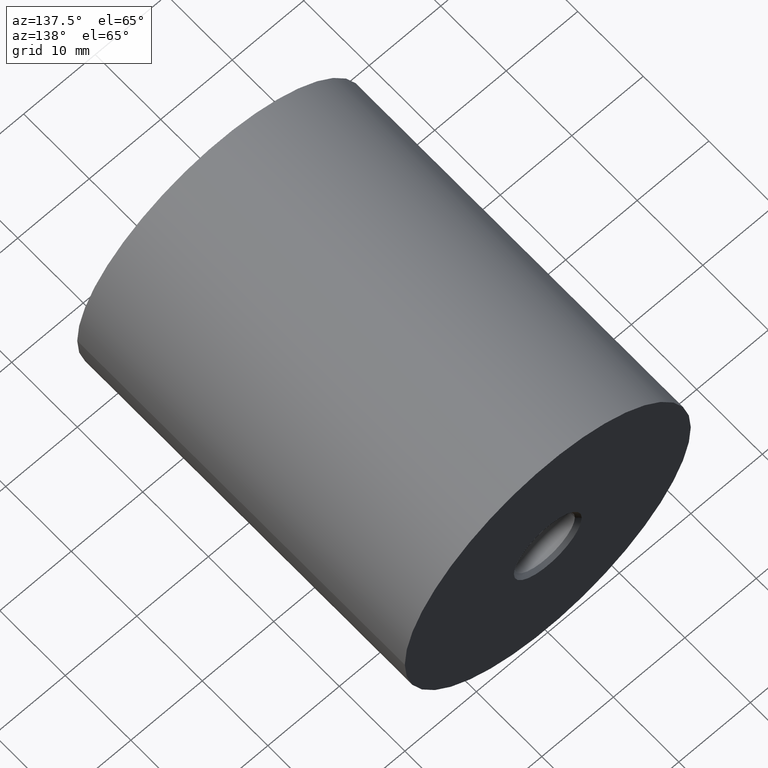
[diagram: clean part render]
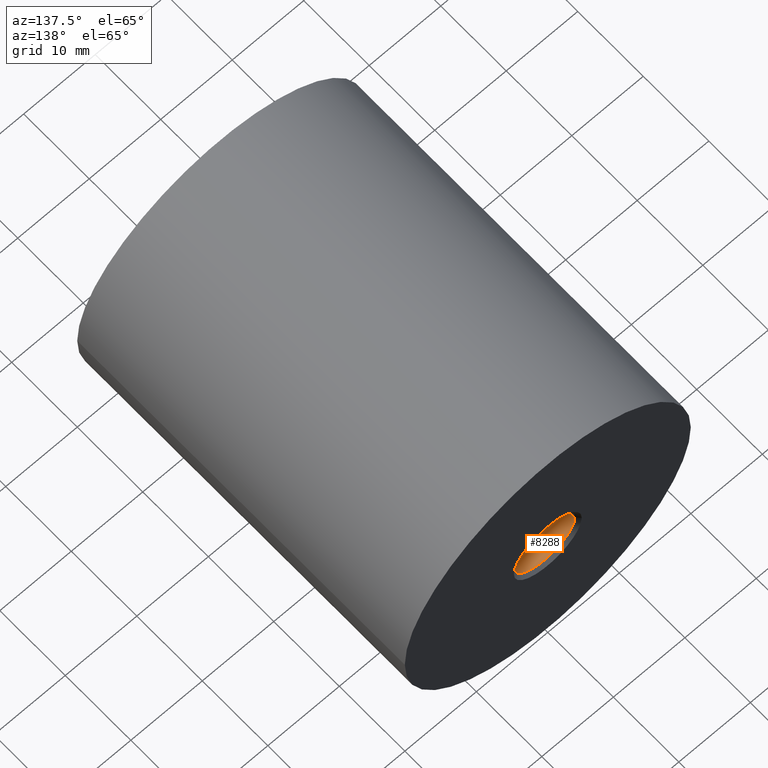
[diagram: same view with one face highlighted and labeled with its STEP entity id]
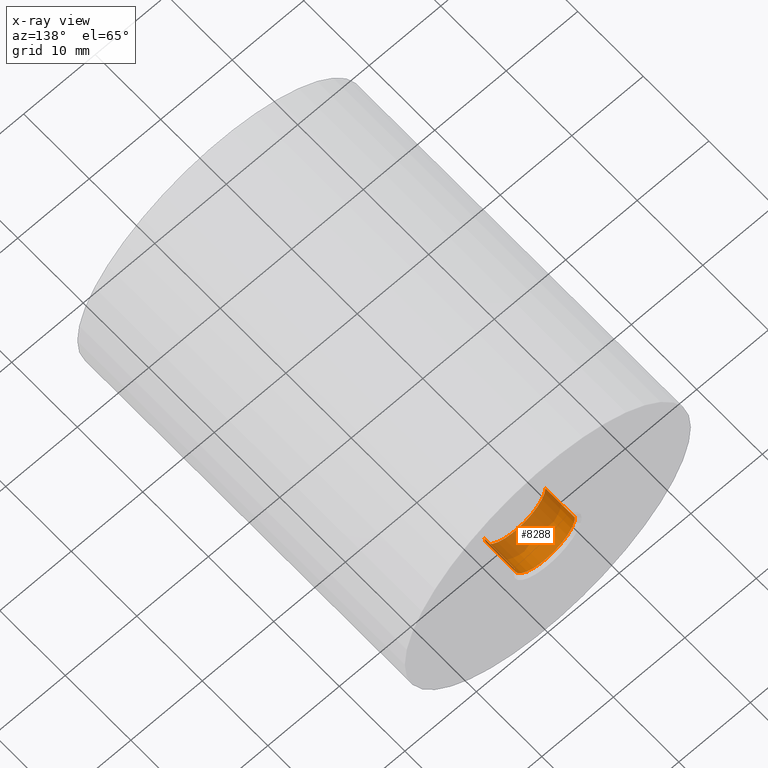
[diagram: x-ray of the same camera — body ghosted, the highlighted face saturated]
A machine part, auxiliary view. The second image highlights one B-rep face of the part: STEP entity #8288.
The next image is the same camera in x-ray: the body ghosted, the highlighted face saturated — about 51% of this face is hidden behind the body in this view.
In plain terms, the highlighted cylindrical surface (partial cylindrical patch) has radius 4.25 mm, axis along (-0, 1, -0).
Its self-contained STEP definition (entity closure, byte-faithful):
#337 = DIRECTION ( 'NONE',  ( -1.000000000000000000, 0.000000000000000000, 0.000000000000000000 ) ) ;
#834 = ORIENTED_EDGE ( 'NONE', *, *, #10615, .F. ) ;
#2391 = LINE ( 'NONE', #14010, #7741 ) ;
#2868 = DIRECTION ( 'NONE',  ( -6.938893903907228378E-17, 1.000000000000000000, -0.000000000000000000 ) ) ;
#3403 = ORIENTED_EDGE ( 'NONE', *, *, #8445, .T. ) ;
#3593 = CARTESIAN_POINT ( 'NONE',  ( 4.249999999999998224, 45.00000000000000711, 5.204748896376253657E-16 ) ) ;
#3916 = ORIENTED_EDGE ( 'NONE', *, *, #7795, .T. ) ;
#4234 = DIRECTION ( 'NONE',  ( -6.938893903907228378E-17, 1.000000000000000000, -0.000000000000000000 ) ) ;
#5154 = CIRCLE ( 'NONE', #8943, 4.250000000000001776 ) ;
#5489 = VERTEX_POINT ( 'NONE', #3593 ) ;
#5504 = EDGE_LOOP ( 'NONE', ( #9743, #3403, #3916, #834 ) ) ;
#5514 = CARTESIAN_POINT ( 'NONE',  ( -3.469446951953614189E-15, 50.00000000000000000, 0.000000000000000000 ) ) ;
#5730 = DIRECTION ( 'NONE',  ( -6.938893903907228378E-17, 1.000000000000000000, -0.000000000000000000 ) ) ;
#5739 = VERTEX_POINT ( 'NONE', #6215 ) ;
#6215 = CARTESIAN_POINT ( 'NONE',  ( 4.249999999999999112, 49.50000000000000000, 5.510910596163092514E-16 ) ) ;
#7190 = VECTOR ( 'NONE', #5730, 1000.000000000000000 ) ;
#7361 = CARTESIAN_POINT ( 'NONE',  ( -4.250000000000006217, 49.50000000000000000, 0.000000000000000000 ) ) ;
#7585 = CYLINDRICAL_SURFACE ( 'NONE', #8982, 4.250000000000001776 ) ;
#7741 = VECTOR ( 'NONE', #9189, 1000.000000000000000 ) ;
#7795 = EDGE_CURVE ( 'NONE', #5739, #12367, #11064, .T. ) ;
#7838 = CARTESIAN_POINT ( 'NONE',  ( -3.122502256758253164E-15, 45.00000000000000711, 0.000000000000000000 ) ) ;
#8156 = CARTESIAN_POINT ( 'NONE',  ( 4.249999999999998224, 50.00000000000000000, 5.204748896376253657E-16 ) ) ;
#8288 = ADVANCED_FACE ( 'NONE', ( #13733 ), #7585, .F. ) ;
#8445 = EDGE_CURVE ( 'NONE', #5489, #5739, #11053, .T. ) ;
#8943 = AXIS2_PLACEMENT_3D ( 'NONE', #7838, #2868, #337 ) ;
#8982 = AXIS2_PLACEMENT_3D ( 'NONE', #5514, #4234, #12830 ) ;
#9189 = DIRECTION ( 'NONE',  ( -6.938893903907228378E-17, 1.000000000000000000, -0.000000000000000000 ) ) ;
#9743 = ORIENTED_EDGE ( 'NONE', *, *, #15583, .F. ) ;
#10605 = DIRECTION ( 'NONE',  ( -6.938893903907228378E-17, 1.000000000000000000, -0.000000000000000000 ) ) ;
#10615 = EDGE_CURVE ( 'NONE', #15697, #12367, #2391, .T. ) ;
#11053 = LINE ( 'NONE', #8156, #7190 ) ;
#11064 = CIRCLE ( 'NONE', #13599, 4.250000000000002665 ) ;
#12367 = VERTEX_POINT ( 'NONE', #7361 ) ;
#12830 = DIRECTION ( 'NONE',  ( -1.000000000000000000, 0.000000000000000000, 0.000000000000000000 ) ) ;
#12838 = CARTESIAN_POINT ( 'NONE',  ( -4.250000000000005329, 45.00000000000000711, 0.000000000000000000 ) ) ;
#13599 = AXIS2_PLACEMENT_3D ( 'NONE', #14299, #10605, #14393 ) ;
#13733 = FACE_OUTER_BOUND ( 'NONE', #5504, .T. ) ;
#14010 = CARTESIAN_POINT ( 'NONE',  ( -4.250000000000005329, 50.00000000000000000, 0.000000000000000000 ) ) ;
#14299 = CARTESIAN_POINT ( 'NONE',  ( -3.434752482434078047E-15, 49.50000000000000000, 0.000000000000000000 ) ) ;
#14393 = DIRECTION ( 'NONE',  ( -1.000000000000000000, 0.000000000000000000, 0.000000000000000000 ) ) ;
#15583 = EDGE_CURVE ( 'NONE', #5489, #15697, #5154, .T. ) ;
#15697 = VERTEX_POINT ( 'NONE', #12838 ) ;